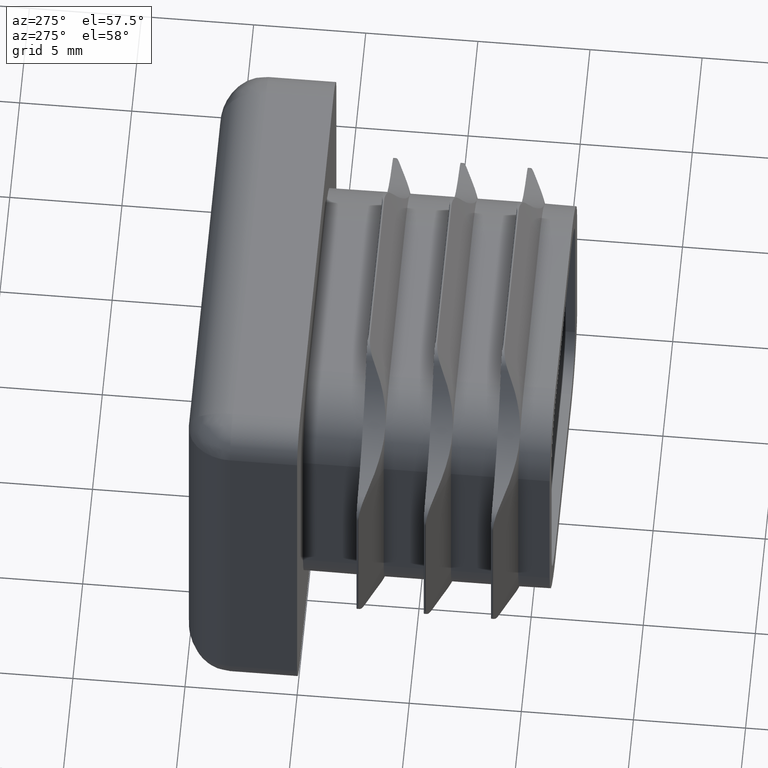
[diagram: clean part render]
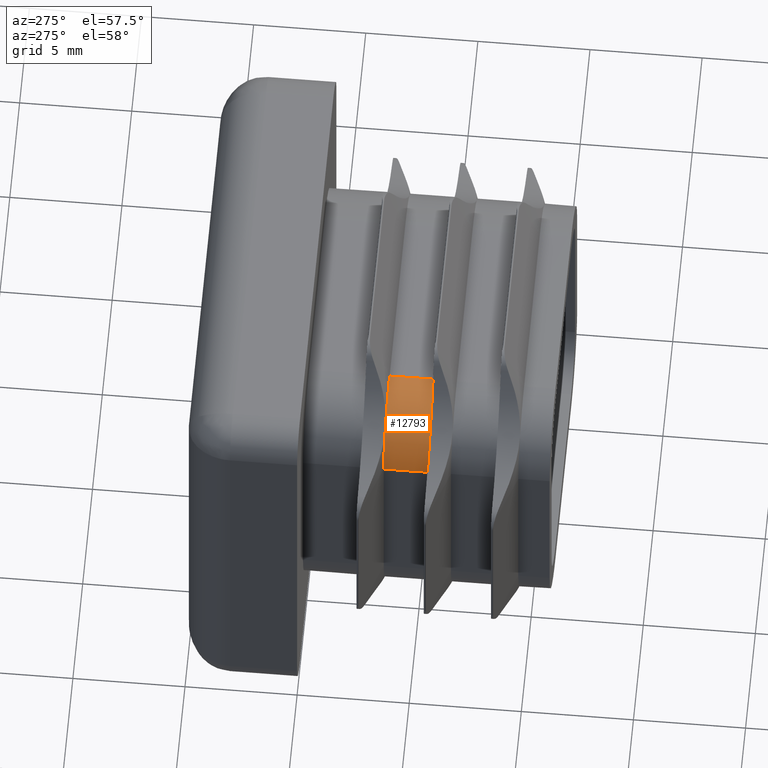
[diagram: same view with one face highlighted and labeled with its STEP entity id]
A machine part, auxiliary view. The second image highlights one B-rep face of the part: STEP entity #12793.
In plain terms, the highlighted cylindrical surface (partial cylindrical patch) has radius 3 mm, axis along (-0, 1, -0).
Its self-contained STEP definition (entity closure, byte-faithful):
#931 = ORIENTED_EDGE ( 'NONE', *, *, #20759, .F. ) ;
#1579 = AXIS2_PLACEMENT_3D ( 'NONE', #11356, #19595, #17765 ) ;
#2242 = CARTESIAN_POINT ( 'NONE',  ( -3.999999999999976019, -3.600000000000000089, 3.999999999999996447 ) ) ;
#2792 = EDGE_CURVE ( 'NONE', #7199, #4537, #4748, .T. ) ;
#3555 = EDGE_CURVE ( 'NONE', #8101, #14465, #13098, .T. ) ;
#4334 = VERTEX_POINT ( 'NONE', #9515 ) ;
#4537 = VERTEX_POINT ( 'NONE', #18682 ) ;
#4748 = LINE ( 'NONE', #17480, #10587 ) ;
#4931 = CARTESIAN_POINT ( 'NONE',  ( -3.999999999999982681, -11.00000000000000000, 7.000000000000006217 ) ) ;
#5302 = DIRECTION ( 'NONE',  ( -1.000000000000000000, 0.000000000000000000, -2.891205793294630107E-15 ) ) ;
#5525 = ORIENTED_EDGE ( 'NONE', *, *, #17404, .F. ) ;
#5641 = CARTESIAN_POINT ( 'NONE',  ( -3.999999999999982681, -5.599999999999999645, 7.000000000000006217 ) ) ;
#5889 = EDGE_CURVE ( 'NONE', #14465, #11253, #15067, .T. ) ;
#6150 = AXIS2_PLACEMENT_3D ( 'NONE', #8681, #20042, #16867 ) ;
#6566 = AXIS2_PLACEMENT_3D ( 'NONE', #2242, #11907, #19930 ) ;
#6784 = DIRECTION ( 'NONE',  ( 0.000000000000000000, 1.000000000000000000, 0.000000000000000000 ) ) ;
#7199 = VERTEX_POINT ( 'NONE', #11235 ) ;
#7564 = CARTESIAN_POINT ( 'NONE',  ( -6.121320343559640165, -5.599999999999999645, 6.121320343559689015 ) ) ;
#8101 = VERTEX_POINT ( 'NONE', #7564 ) ;
#8446 = AXIS2_PLACEMENT_3D ( 'NONE', #9239, #20739, #9499 ) ;
#8681 = CARTESIAN_POINT ( 'NONE',  ( -3.999999999999976019, -3.600000000000000089, 3.999999999999996447 ) ) ;
#8911 = EDGE_LOOP ( 'NONE', ( #5525, #931, #11032, #18116, #19765, #13244 ) ) ;
#9239 = CARTESIAN_POINT ( 'NONE',  ( -3.999999999999976019, -5.599999999999999645, 3.999999999999996447 ) ) ;
#9499 = DIRECTION ( 'NONE',  ( -1.000000000000000000, 0.000000000000000000, -2.891205793294630107E-15 ) ) ;
#9515 = CARTESIAN_POINT ( 'NONE',  ( -6.121320343559595756, -3.600000000000007638, 6.121320343559644606 ) ) ;
#9895 = CARTESIAN_POINT ( 'NONE',  ( -3.999999999999976019, -5.599999999999999645, 3.999999999999996447 ) ) ;
#10587 = VECTOR ( 'NONE', #11280, 1000.000000000000000 ) ;
#10754 = VECTOR ( 'NONE', #16224, 1000.000000000000000 ) ;
#11032 = ORIENTED_EDGE ( 'NONE', *, *, #2792, .F. ) ;
#11235 = CARTESIAN_POINT ( 'NONE',  ( -6.999999999999999112, -5.599999999999999645, 3.999999999999989786 ) ) ;
#11253 = VERTEX_POINT ( 'NONE', #12018 ) ;
#11280 = DIRECTION ( 'NONE',  ( -0.000000000000000000, 1.000000000000000000, -0.000000000000000000 ) ) ;
#11356 = CARTESIAN_POINT ( 'NONE',  ( -3.999999999999982681, -11.00000000000000000, 3.999999999999996447 ) ) ;
#11423 = CIRCLE ( 'NONE', #6566, 3.000000000000008882 ) ;
#11907 = DIRECTION ( 'NONE',  ( 0.000000000000000000, 1.000000000000000000, 0.000000000000000000 ) ) ;
#12018 = CARTESIAN_POINT ( 'NONE',  ( -3.999999999999982681, -3.599999999999995648, 7.000000000000006217 ) ) ;
#12557 = AXIS2_PLACEMENT_3D ( 'NONE', #9895, #6784, #5302 ) ;
#12793 = ADVANCED_FACE ( 'NONE', ( #16718 ), #20525, .T. ) ;
#13098 = CIRCLE ( 'NONE', #12557, 3.000000000000050182 ) ;
#13244 = ORIENTED_EDGE ( 'NONE', *, *, #5889, .T. ) ;
#14465 = VERTEX_POINT ( 'NONE', #5641 ) ;
#15067 = LINE ( 'NONE', #4931, #10754 ) ;
#15386 = EDGE_CURVE ( 'NONE', #7199, #8101, #20983, .T. ) ;
#15854 = CIRCLE ( 'NONE', #6150, 3.000000000000008882 ) ;
#16224 = DIRECTION ( 'NONE',  ( -0.000000000000000000, 1.000000000000000000, -0.000000000000000000 ) ) ;
#16718 = FACE_OUTER_BOUND ( 'NONE', #8911, .T. ) ;
#16867 = DIRECTION ( 'NONE',  ( -1.000000000000000000, 0.000000000000000000, -2.891205793294669945E-15 ) ) ;
#17404 = EDGE_CURVE ( 'NONE', #4334, #11253, #15854, .T. ) ;
#17480 = CARTESIAN_POINT ( 'NONE',  ( -6.999999999999999112, -11.00000000000000000, 3.999999999999989786 ) ) ;
#17765 = DIRECTION ( 'NONE',  ( 0.000000000000000000, 0.000000000000000000, 1.000000000000000000 ) ) ;
#18116 = ORIENTED_EDGE ( 'NONE', *, *, #15386, .T. ) ;
#18682 = CARTESIAN_POINT ( 'NONE',  ( -6.999999999999999112, -3.599999999999994760, 3.999999999999989786 ) ) ;
#19595 = DIRECTION ( 'NONE',  ( -0.000000000000000000, 1.000000000000000000, -0.000000000000000000 ) ) ;
#19765 = ORIENTED_EDGE ( 'NONE', *, *, #3555, .T. ) ;
#19930 = DIRECTION ( 'NONE',  ( -1.000000000000000000, 0.000000000000000000, -2.891205793294669945E-15 ) ) ;
#20042 = DIRECTION ( 'NONE',  ( 0.000000000000000000, 1.000000000000000000, 0.000000000000000000 ) ) ;
#20525 = CYLINDRICAL_SURFACE ( 'NONE', #1579, 3.000000000000009770 ) ;
#20739 = DIRECTION ( 'NONE',  ( 0.000000000000000000, 1.000000000000000000, 0.000000000000000000 ) ) ;
#20759 = EDGE_CURVE ( 'NONE', #4537, #4334, #11423, .T. ) ;
#20983 = CIRCLE ( 'NONE', #8446, 3.000000000000050182 ) ;